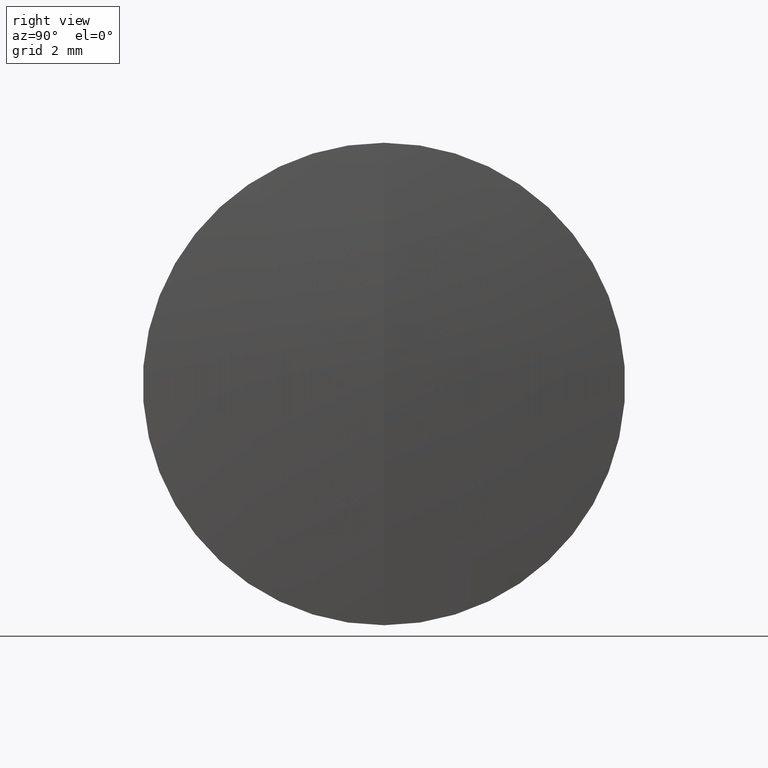
[diagram: clean part render]
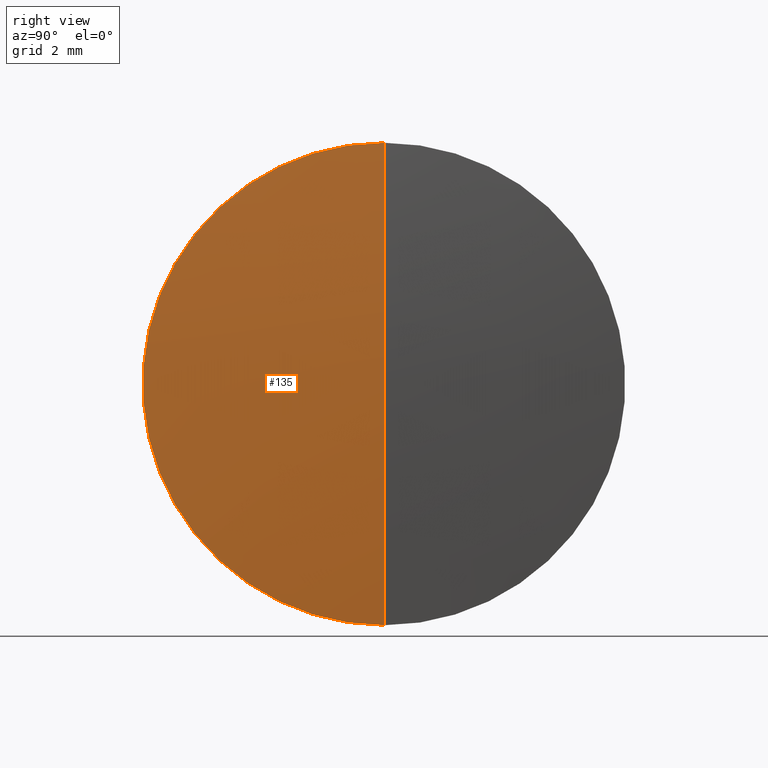
[diagram: same view with one face highlighted and labeled with its STEP entity id]
A machine part, right view. The second image highlights one B-rep face of the part: STEP entity #135.
In plain terms, the highlighted spherical surface has radius 68.5 mm.
Its self-contained STEP definition (entity closure, byte-faithful):
#10 = CARTESIAN_POINT ( 'NONE',  ( 276.0089566504702200, 0.0000000000000000000, 4.194415287079683600E-015 ) ) ;
#30 = CIRCLE ( 'NONE', #246, 68.49999999999998600 ) ;
#31 = DIRECTION ( 'NONE',  ( -1.000000000000000000, -0.0000000000000000000, -0.0000000000000000000 ) ) ;
#34 = ORIENTED_EDGE ( 'NONE', *, *, #234, .F. ) ;
#36 = DIRECTION ( 'NONE',  ( 0.0000000000000000000, -1.000000000000000000, 0.0000000000000000000 ) ) ;
#41 = DIRECTION ( 'NONE',  ( 0.0000000000000000000, 0.0000000000000000000, 1.000000000000000000 ) ) ;
#45 = EDGE_CURVE ( 'NONE', #218, #122, #164, .T. ) ;
#62 = AXIS2_PLACEMENT_3D ( 'NONE', #141, #175, #334 ) ;
#66 = VERTEX_POINT ( 'NONE', #179 ) ;
#67 = CIRCLE ( 'NONE', #262, 6.349999999999993400 ) ;
#89 = DIRECTION ( 'NONE',  ( 0.0000000000000000000, 0.0000000000000000000, 1.000000000000000000 ) ) ;
#118 = CARTESIAN_POINT ( 'NONE',  ( 207.5089566504702000, 0.0000000000000000000, 0.0000000000000000000 ) ) ;
#122 = VERTEX_POINT ( 'NONE', #206 ) ;
#133 = ORIENTED_EDGE ( 'NONE', *, *, #284, .T. ) ;
#135 = ADVANCED_FACE ( 'NONE', ( #316 ), #266, .T. ) ;
#141 = CARTESIAN_POINT ( 'NONE',  ( 207.5089566504702000, 0.0000000000000000000, 0.0000000000000000000 ) ) ;
#158 = DIRECTION ( 'NONE',  ( 0.0000000000000000000, 0.0000000000000000000, -1.000000000000000000 ) ) ;
#164 = CIRCLE ( 'NONE', #62, 68.49999999999998600 ) ;
#169 = EDGE_LOOP ( 'NONE', ( #227, #133, #34 ) ) ;
#175 = DIRECTION ( 'NONE',  ( -0.0000000000000000000, 1.000000000000000000, 1.224646799147353200E-016 ) ) ;
#179 = CARTESIAN_POINT ( 'NONE',  ( 275.7139967868120000, 0.0000000000000000000, 6.349999999999993400 ) ) ;
#206 = CARTESIAN_POINT ( 'NONE',  ( 275.7139967868120000, 7.776507174585685300E-016, -6.349999999999993400 ) ) ;
#207 = DIRECTION ( 'NONE',  ( 0.0000000000000000000, 1.000000000000000000, 0.0000000000000000000 ) ) ;
#218 = VERTEX_POINT ( 'NONE', #10 ) ;
#227 = ORIENTED_EDGE ( 'NONE', *, *, #45, .F. ) ;
#232 = CARTESIAN_POINT ( 'NONE',  ( 275.7139967868120000, 0.0000000000000000000, 0.0000000000000000000 ) ) ;
#234 = EDGE_CURVE ( 'NONE', #122, #66, #67, .T. ) ;
#236 = CARTESIAN_POINT ( 'NONE',  ( 207.5089566504702000, 0.0000000000000000000, 0.0000000000000000000 ) ) ;
#246 = AXIS2_PLACEMENT_3D ( 'NONE', #118, #36, #158 ) ;
#262 = AXIS2_PLACEMENT_3D ( 'NONE', #232, #31, #89 ) ;
#266 = SPHERICAL_SURFACE ( 'NONE', #332, 68.49999999999998600 ) ;
#284 = EDGE_CURVE ( 'NONE', #218, #66, #30, .T. ) ;
#316 = FACE_OUTER_BOUND ( 'NONE', #169, .T. ) ;
#332 = AXIS2_PLACEMENT_3D ( 'NONE', #236, #207, #41 ) ;
#334 = DIRECTION ( 'NONE',  ( 0.0000000000000000000, -1.224646799147353200E-016, 1.000000000000000000 ) ) ;